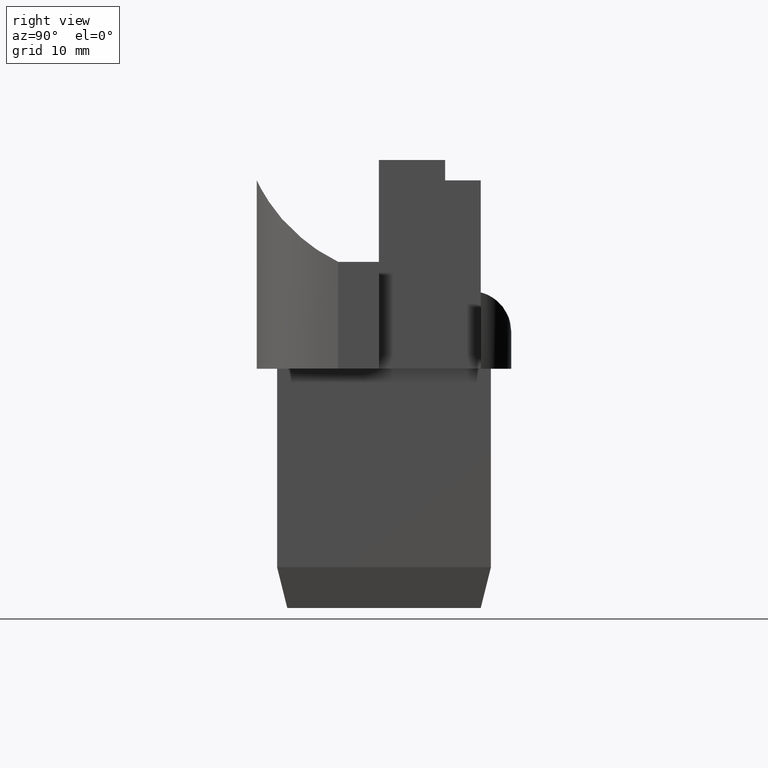
[diagram: clean part render]
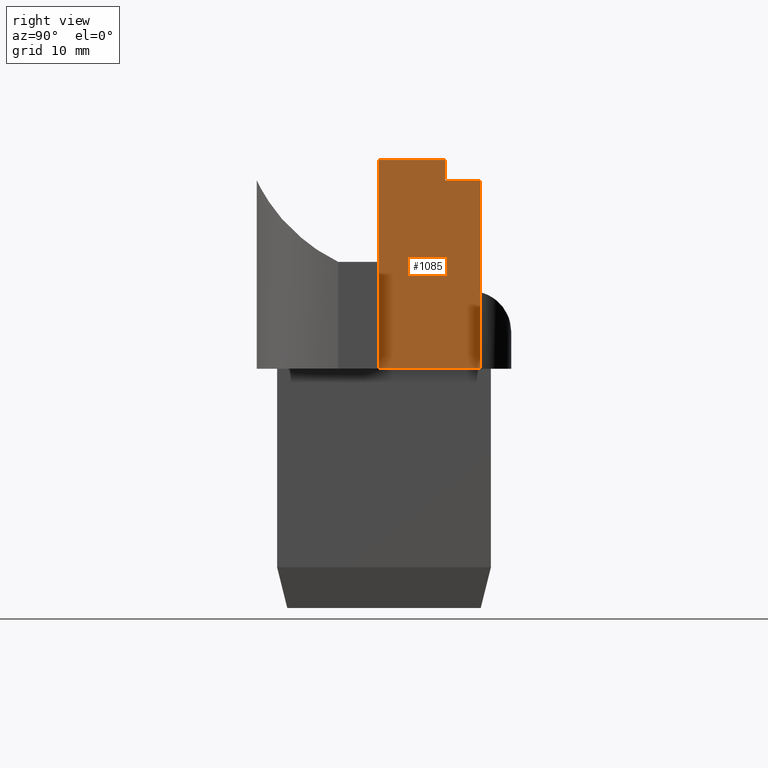
[diagram: same view with one face highlighted and labeled with its STEP entity id]
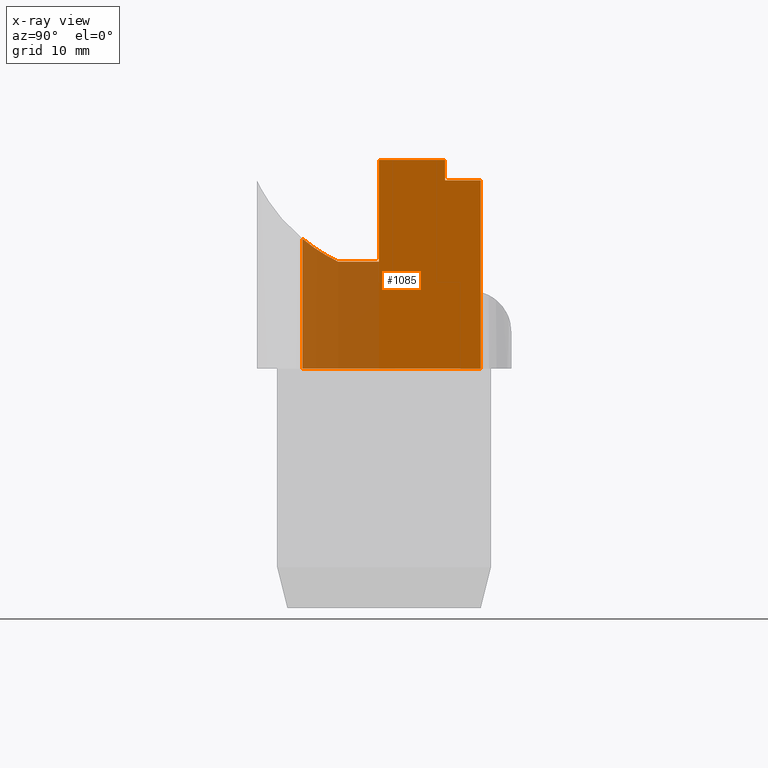
[diagram: x-ray of the same camera — body ghosted, the highlighted face saturated]
A machine part, right view. The second image highlights one B-rep face of the part: STEP entity #1085.
The next image is the same camera in x-ray: the body ghosted, the highlighted face saturated — about 29% of this face is hidden behind the body in this view.
In plain terms, the highlighted planar face has unit normal (1, 0, 0).
Its self-contained STEP definition (entity closure, byte-faithful):
#70=CIRCLE('',#1170,17.);
#113=FACE_OUTER_BOUND('',#178,.T.);
#178=EDGE_LOOP('',(#870,#871,#872,#873,#874,#875,#876,#877,#878,#879));
#259=LINE('',#1668,#379);
#264=LINE('',#1678,#384);
#280=LINE('',#1722,#400);
#281=LINE('',#1725,#401);
#282=LINE('',#1727,#402);
#283=LINE('',#1728,#403);
#284=LINE('',#1732,#404);
#285=LINE('',#1734,#405);
#286=LINE('',#1735,#406);
#379=VECTOR('',#1343,4.);
#384=VECTOR('',#1352,10.);
#400=VECTOR('',#1394,11.);
#401=VECTOR('',#1397,3.50000000000001);
#402=VECTOR('',#1398,2.);
#403=VECTOR('',#1399,6.5);
#404=VECTOR('',#1402,12.7367083543114);
#405=VECTOR('',#1403,17.5);
#406=VECTOR('',#1404,7.5);
#494=VERTEX_POINT('',#1665);
#495=VERTEX_POINT('',#1667);
#498=VERTEX_POINT('',#1677);
#505=VERTEX_POINT('',#1694);
#513=VERTEX_POINT('',#1720);
#514=VERTEX_POINT('',#1724);
#515=VERTEX_POINT('',#1726);
#516=VERTEX_POINT('',#1729);
#517=VERTEX_POINT('',#1731);
#518=VERTEX_POINT('',#1733);
#617=EDGE_CURVE('',#495,#494,#259,.T.);
#622=EDGE_CURVE('',#498,#495,#264,.T.);
#644=EDGE_CURVE('',#505,#513,#280,.T.);
#645=EDGE_CURVE('',#514,#513,#281,.T.);
#646=EDGE_CURVE('',#514,#515,#282,.T.);
#647=EDGE_CURVE('',#498,#515,#283,.T.);
#648=EDGE_CURVE('',#494,#516,#70,.T.);
#649=EDGE_CURVE('',#516,#517,#284,.T.);
#650=EDGE_CURVE('',#518,#517,#285,.T.);
#651=EDGE_CURVE('',#518,#505,#286,.T.);
#870=ORIENTED_EDGE('',*,*,#644,.T.);
#871=ORIENTED_EDGE('',*,*,#645,.F.);
#872=ORIENTED_EDGE('',*,*,#646,.T.);
#873=ORIENTED_EDGE('',*,*,#647,.F.);
#874=ORIENTED_EDGE('',*,*,#622,.T.);
#875=ORIENTED_EDGE('',*,*,#617,.T.);
#876=ORIENTED_EDGE('',*,*,#648,.T.);
#877=ORIENTED_EDGE('',*,*,#649,.T.);
#878=ORIENTED_EDGE('',*,*,#650,.F.);
#879=ORIENTED_EDGE('',*,*,#651,.T.);
#1030=PLANE('',#1169);
#1085=ADVANCED_FACE('',(#113),#1030,.T.);
#1169=AXIS2_PLACEMENT_3D('',#1723,#1395,#1396);
#1170=AXIS2_PLACEMENT_3D('',#1730,#1400,#1401);
#1343=DIRECTION('',(0.,-1.,-5.55111512312579E-16));
#1352=DIRECTION('',(0.,0.,-1.));
#1394=DIRECTION('',(0.,8.07434927000114E-16,1.));
#1395=DIRECTION('center_axis',(1.,0.,0.));
#1396=DIRECTION('ref_axis',(0.,1.,0.));
#1397=DIRECTION('',(-1.26882631385732E-16,1.,0.));
#1398=DIRECTION('',(0.,0.,1.));
#1399=DIRECTION('',(0.,1.,0.));
#1400=DIRECTION('center_axis',(-1.,0.,0.));
#1401=DIRECTION('ref_axis',(0.,-0.90210494404439,-0.431516708750273));
#1402=DIRECTION('',(0.,0.,-1.));
#1403=DIRECTION('',(0.,-1.,0.));
#1404=DIRECTION('',(0.,0.,1.));
#1665=CARTESIAN_POINT('',(12.5,-4.5,22.25));
#1667=CARTESIAN_POINT('',(12.5,-0.499999999999999,22.25));
#1668=CARTESIAN_POINT('',(12.5,-6.5,22.25));
#1677=CARTESIAN_POINT('',(12.5,-0.499999999999999,32.25));
#1678=CARTESIAN_POINT('',(12.5,-0.499999999999998,21.));
#1694=CARTESIAN_POINT('',(12.5,9.5,19.25));
#1720=CARTESIAN_POINT('',(12.5,9.50000000000001,30.25));
#1722=CARTESIAN_POINT('',(12.5,9.5,15.5));
#1723=CARTESIAN_POINT('Origin',(12.5,-12.5,11.75));
#1724=CARTESIAN_POINT('',(12.5,6.,30.25));
#1725=CARTESIAN_POINT('',(12.5,-8.,30.25));
#1726=CARTESIAN_POINT('',(12.5,6.,32.25));
#1727=CARTESIAN_POINT('',(12.5,6.,30.25));
#1728=CARTESIAN_POINT('',(12.5,-0.499999999999999,32.25));
#1729=CARTESIAN_POINT('',(12.5,-8.,24.4867083543114));
#1730=CARTESIAN_POINT('Origin',(12.5,2.83578404875464,37.5857840487546));
#1731=CARTESIAN_POINT('',(12.5,-8.,11.75));
#1732=CARTESIAN_POINT('',(12.5,-8.,19.25));
#1733=CARTESIAN_POINT('',(12.5,9.5,11.75));
#1734=CARTESIAN_POINT('',(12.5,12.5,11.75));
#1735=CARTESIAN_POINT('',(12.5,9.5,15.5));